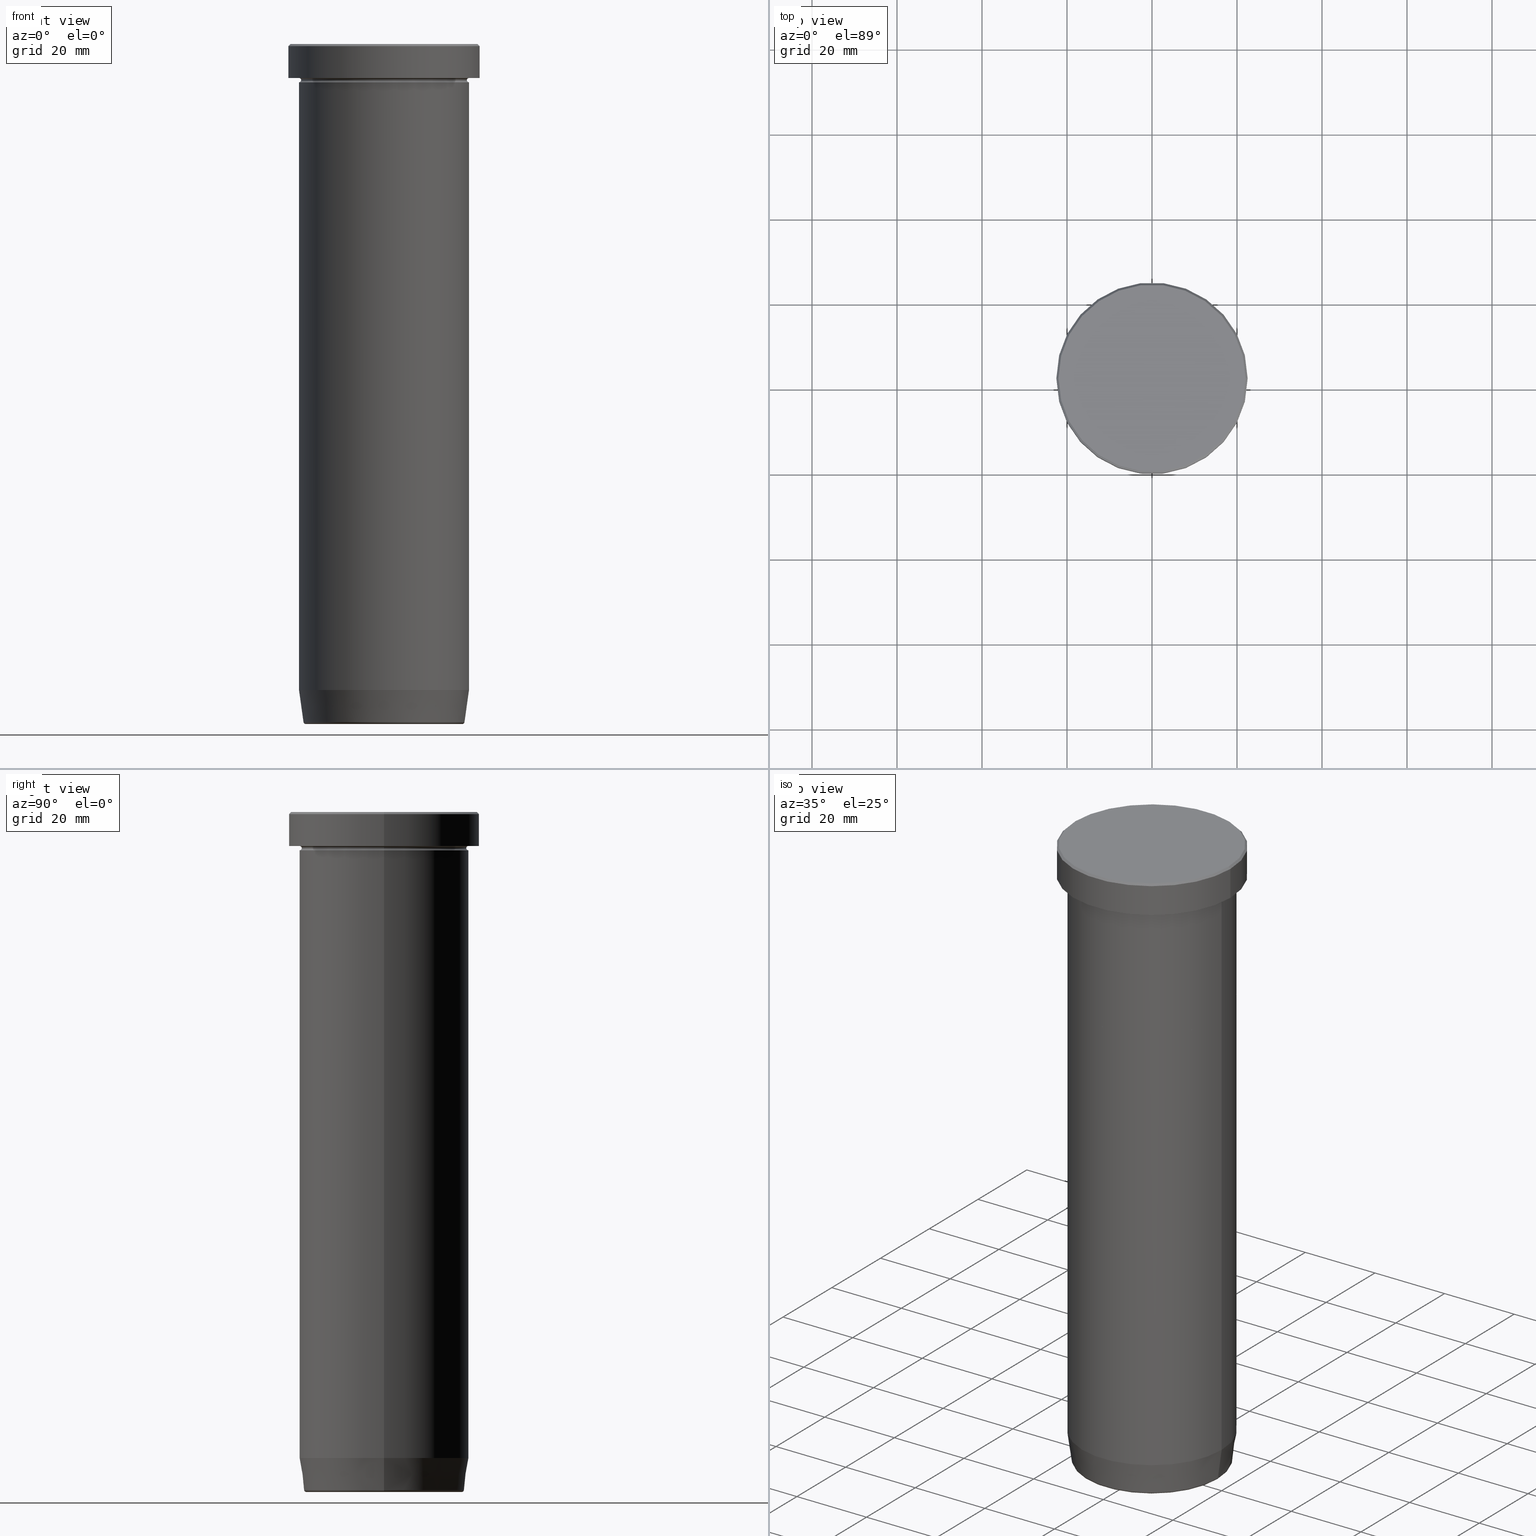
[diagram: canonical four-view strip — front | top / right | iso, engineering-drawing reading convention]
A machine part, canonical four-view strip (front | top / right | iso — engineering-drawing reading convention). The complete STEP part file that produces these views, byte-faithful:
ISO-10303-21;
HEADER;
FILE_DESCRIPTION (( 'STEP AP203' ),
    '1' );
FILE_NAME ('8f51.STEP',
    '2024-01-02T17:48:45',
    ( '' ),
    ( '' ),
    'SwSTEP 2.0',
    'SolidWorks 2019',
    '' );
FILE_SCHEMA (( 'CONFIG_CONTROL_DESIGN' ));
ENDSEC;

DATA;
#1 = CARTESIAN_POINT ( 'NONE',  ( 0.000000000000000000, 0.000000000000000000, -159.4999999999999716 ) ) ;
#2 = ADVANCED_FACE ( 'NONE', ( #351 ), #305, .T. ) ;
#3 = FACE_OUTER_BOUND ( 'NONE', #355, .T. ) ;
#4 = AXIS2_PLACEMENT_3D ( 'NONE', #227, #76, #274 ) ;
#5 = CARTESIAN_POINT ( 'NONE',  ( 20.00000000000000000, 0.000000000000000000, -8.499999999999996447 ) ) ;
#6 = EDGE_LOOP ( 'NONE', ( #569, #513, #464, #572 ) ) ;
#7 = APPROVAL_DATE_TIME ( #106, #290 ) ;
#8 = SHAPE_DEFINITION_REPRESENTATION ( #109, #471 ) ;
#9 = ORIENTED_EDGE ( 'NONE', *, *, #410, .F. ) ;
#10 = ORIENTED_EDGE ( 'NONE', *, *, #107, .F. ) ;
#11 = DATE_AND_TIME ( #407, #532 ) ;
#12 = CIRCLE ( 'NONE', #298, 22.50000000000000000 ) ;
#13 = FACE_OUTER_BOUND ( 'NONE', #399, .T. ) ;
#14 = CARTESIAN_POINT ( 'NONE',  ( -22.00000000000000000, 0.000000000000000000, 0.000000000000000000 ) ) ;
#15 = LINE ( 'NONE', #220, #165 ) ;
#16 = PRODUCT_RELATED_PRODUCT_CATEGORY ( 'detail', '', ( #311 ) ) ;
#17 = CARTESIAN_POINT ( 'NONE',  ( 0.000000000000000000, 0.000000000000000000, -8.999999999999998224 ) ) ;
#18 = CARTESIAN_POINT ( 'NONE',  ( 0.000000000000000000, 0.000000000000000000, -7.999999999999998224 ) ) ;
#19 = DIRECTION ( 'NONE',  ( -0.000000000000000000, -0.000000000000000000, 1.000000000000000000 ) ) ;
#20 = FACE_OUTER_BOUND ( 'NONE', #91, .T. ) ;
#21 = VECTOR ( 'NONE', #522, 1000.000000000000227 ) ;
#22 = AXIS2_PLACEMENT_3D ( 'NONE', #588, #129, #369 ) ;
#23 = DIRECTION ( 'NONE',  ( 1.000000000000000000, 0.000000000000000000, 0.000000000000000000 ) ) ;
#24 = ORIENTED_EDGE ( 'NONE', *, *, #118, .T. ) ;
#25 = ORIENTED_EDGE ( 'NONE', *, *, #202, .F. ) ;
#26 = EDGE_CURVE ( 'NONE', #66, #304, #420, .T. ) ;
#27 = CARTESIAN_POINT ( 'NONE',  ( 0.000000000000000000, 0.000000000000000000, -159.9999999999999716 ) ) ;
#28 = CARTESIAN_POINT ( 'NONE',  ( -20.00000000000000000, 0.000000000000000000, -8.499999999999998224 ) ) ;
#29 = AXIS2_PLACEMENT_3D ( 'NONE', #530, #403, #108 ) ;
#30 = DIRECTION ( 'NONE',  ( 1.000000000000000000, 0.000000000000000000, 0.000000000000000000 ) ) ;
#31 = VECTOR ( 'NONE', #155, 1000.000000000000000 ) ;
#32 = FACE_OUTER_BOUND ( 'NONE', #221, .T. ) ;
#33 = PERSON_AND_ORGANIZATION_ROLE ( 'creator' ) ;
#34 = ORIENTED_EDGE ( 'NONE', *, *, #107, .T. ) ;
#35 = DIRECTION ( 'NONE',  ( -1.000000000000000000, 0.000000000000000000, 0.000000000000000000 ) ) ;
#36 = ORIENTED_EDGE ( 'NONE', *, *, #141, .T. ) ;
#37 = LINE ( 'NONE', #233, #51 ) ;
#38 = DIRECTION ( 'NONE',  ( 1.000000000000000000, 0.000000000000000000, 0.000000000000000000 ) ) ;
#39 = AXIS2_PLACEMENT_3D ( 'NONE', #271, #101, #301 ) ;
#40 = APPROVAL_PERSON_ORGANIZATION ( #555, #290, #294 ) ;
#41 = PLANE ( 'NONE',  #156 ) ;
#42 = EDGE_CURVE ( 'NONE', #161, #275, #368, .T. ) ;
#43 = DIRECTION ( 'NONE',  ( -1.000000000000000000, 0.000000000000000000, -0.000000000000000000 ) ) ;
#44 = DIRECTION ( 'NONE',  ( 1.000000000000000000, 0.000000000000000000, 0.000000000000000000 ) ) ;
#45 = PLANE ( 'NONE',  #243 ) ;
#46 = CC_DESIGN_DATE_AND_TIME_ASSIGNMENT ( #100, #58, ( #278 ) ) ;
#47 = CIRCLE ( 'NONE', #112, 20.00000000000000000 ) ;
#48 = APPROVAL_DATE_TIME ( #436, #131 ) ;
#49 = VERTEX_POINT ( 'NONE', #268 ) ;
#50 = PERSON_AND_ORGANIZATION ( #540, #544 ) ;
#51 = VECTOR ( 'NONE', #422, 1000.000000000000000 ) ;
#52 = FACE_OUTER_BOUND ( 'NONE', #341, .T. ) ;
#53 = ORIENTED_EDGE ( 'NONE', *, *, #71, .T. ) ;
#54 = DIRECTION ( 'NONE',  ( -0.000000000000000000, -0.000000000000000000, 1.000000000000000000 ) ) ;
#55 = ORIENTED_EDGE ( 'NONE', *, *, #300, .F. ) ;
#56 = DIRECTION ( 'NONE',  ( -1.000000000000000000, 0.000000000000000000, 0.000000000000000000 ) ) ;
#57 = FACE_OUTER_BOUND ( 'NONE', #282, .T. ) ;
#58 = DATE_TIME_ROLE ( 'creation_date' ) ;
#59 = CLOSED_SHELL ( 'NONE', ( #223, #417, #553, #347, #281, #446, #179, #515 ) ) ;
#60 = AXIS2_PLACEMENT_3D ( 'NONE', #272, #312, #320 ) ;
#61 = DIRECTION ( 'NONE',  ( -1.000000000000000000, 1.224646799147349509E-16, 0.000000000000000000 ) ) ;
#62 = ORIENTED_EDGE ( 'NONE', *, *, #42, .T. ) ;
#63 = DIRECTION ( 'NONE',  ( -0.000000000000000000, -0.000000000000000000, 1.000000000000000000 ) ) ;
#64 = CC_DESIGN_PERSON_AND_ORGANIZATION_ASSIGNMENT ( #277, #33, ( #354 ) ) ;
#65 = DIRECTION ( 'NONE',  ( -0.000000000000000000, -0.000000000000000000, 1.000000000000000000 ) ) ;
#66 = VERTEX_POINT ( 'NONE', #194 ) ;
#67 = APPROVAL_ROLE ( '' ) ;
#68 = VERTEX_POINT ( 'NONE', #173 ) ;
#69 = VERTEX_POINT ( 'NONE', #571 ) ;
#70 =( NAMED_UNIT ( * ) SI_UNIT ( $, .STERADIAN. ) SOLID_ANGLE_UNIT ( ) );
#71 = EDGE_CURVE ( 'NONE', #382, #66, #86, .T. ) ;
#72 = EDGE_LOOP ( 'NONE', ( #501, #340, #492, #421 ) ) ;
#73 = CIRCLE ( 'NONE', #472, 20.00000000000000000 ) ;
#74 = CIRCLE ( 'NONE', #543, 0.5000000000000004441 ) ;
#75 =( GEOMETRIC_REPRESENTATION_CONTEXT ( 3 ) GLOBAL_UNCERTAINTY_ASSIGNED_CONTEXT ( ( #296 ) ) GLOBAL_UNIT_ASSIGNED_CONTEXT ( ( #586, #266, #70 ) ) REPRESENTATION_CONTEXT ( 'NONE', 'WORKASPACE' ) );
#76 = DIRECTION ( 'NONE',  ( 0.000000000000000000, 0.000000000000000000, -1.000000000000000000 ) ) ;
#77 = EDGE_CURVE ( 'NONE', #382, #259, #234, .T. ) ;
#78 = EDGE_LOOP ( 'NONE', ( #206, #548, #577, #10 ) ) ;
#79 = CARTESIAN_POINT ( 'NONE',  ( 22.50000000000000000, 0.000000000000000000, 0.000000000000000000 ) ) ;
#80 = AXIS2_PLACEMENT_3D ( 'NONE', #545, #402, #466 ) ;
#81 = PLANE ( 'NONE',  #280 ) ;
#82 = AXIS2_PLACEMENT_3D ( 'NONE', #429, #136, #562 ) ;
#83 = ORIENTED_EDGE ( 'NONE', *, *, #335, .T. ) ;
#84 = ADVANCED_FACE ( 'NONE', ( #130 ), #596, .F. ) ;
#85 = FACE_OUTER_BOUND ( 'NONE', #292, .T. ) ;
#86 = CIRCLE ( 'NONE', #279, 19.50000000000000000 ) ;
#87 = LOCAL_TIME ( 18, 48, 45.00000000000000000, #97 ) ;
#88 = ORIENTED_EDGE ( 'NONE', *, *, #451, .T. ) ;
#89 = DIRECTION ( 'NONE',  ( 1.000000000000000000, 0.000000000000000000, 0.000000000000000000 ) ) ;
#90 = ADVANCED_FACE ( 'NONE', ( #468 ), #209, .T. ) ;
#91 = EDGE_LOOP ( 'NONE', ( #418, #265, #55, #344 ) ) ;
#92 = ORIENTED_EDGE ( 'NONE', *, *, #426, .T. ) ;
#93 = DIRECTION ( 'NONE',  ( -0.000000000000000000, -0.000000000000000000, 1.000000000000000000 ) ) ;
#94 = VERTEX_POINT ( 'NONE', #115 ) ;
#95 = CYLINDRICAL_SURFACE ( 'NONE', #531, 20.00000000000000000 ) ;
#96 = MANIFOLD_SOLID_BREP ( 'Zkosen�1', #396 ) ;
#97 = COORDINATED_UNIVERSAL_TIME_OFFSET ( 1, 0, .AHEAD. ) ;
#98 = VERTEX_POINT ( 'NONE', #535 ) ;
#99 = DIRECTION ( 'NONE',  ( 1.000000000000000000, 0.000000000000000000, 0.000000000000000000 ) ) ;
#100 = DATE_AND_TIME ( #152, #556 ) ;
#101 = DIRECTION ( 'NONE',  ( 0.000000000000000000, 0.000000000000000000, -1.000000000000000000 ) ) ;
#102 = AXIS2_PLACEMENT_3D ( 'NONE', #124, #132, #30 ) ;
#103 = CARTESIAN_POINT ( 'NONE',  ( 22.00000000000000000, 2.724839128102860991E-15, 0.000000000000000000 ) ) ;
#104 = VERTEX_POINT ( 'NONE', #452 ) ;
#105 = FACE_OUTER_BOUND ( 'NONE', #78, .T. ) ;
#106 = DATE_AND_TIME ( #398, #592 ) ;
#107 = EDGE_CURVE ( 'NONE', #49, #443, #261, .T. ) ;
#108 = DIRECTION ( 'NONE',  ( 1.000000000000000000, 0.000000000000000000, 0.000000000000000000 ) ) ;
#109 = PRODUCT_DEFINITION_SHAPE ( 'NONE', 'NONE',  #278 ) ;
#110 = DIRECTION ( 'NONE',  ( 1.000000000000000000, 0.000000000000000000, 0.000000000000000000 ) ) ;
#111 = ADVANCED_FACE ( 'NONE', ( #57 ), #483, .F. ) ;
#112 = AXIS2_PLACEMENT_3D ( 'NONE', #450, #114, #400 ) ;
#113 = AXIS2_PLACEMENT_3D ( 'NONE', #334, #432, #476 ) ;
#114 = DIRECTION ( 'NONE',  ( -0.000000000000000000, -0.000000000000000000, 1.000000000000000000 ) ) ;
#115 = CARTESIAN_POINT ( 'NONE',  ( 20.00000000000000000, 0.000000000000000000, -151.9999999999999716 ) ) ;
#116 = VERTEX_POINT ( 'NONE', #103 ) ;
#117 = DIRECTION ( 'NONE',  ( -0.000000000000000000, -0.000000000000000000, 1.000000000000000000 ) ) ;
#118 = EDGE_CURVE ( 'NONE', #275, #161, #73, .T. ) ;
#119 = DIRECTION ( 'NONE',  ( 0.000000000000000000, 0.000000000000000000, -1.000000000000000000 ) ) ;
#120 = CYLINDRICAL_SURFACE ( 'NONE', #371, 20.00000000000000000 ) ;
#121 = CARTESIAN_POINT ( 'NONE',  ( 22.50000000000000000, 0.000000000000000000, -7.999999999999998224 ) ) ;
#122 = AXIS2_PLACEMENT_3D ( 'NONE', #247, #212, #251 ) ;
#123 = CIRCLE ( 'NONE', #171, 18.93616398784353194 ) ;
#124 = CARTESIAN_POINT ( 'NONE',  ( 0.000000000000000000, 0.000000000000000000, -159.9999999999999716 ) ) ;
#125 = DIRECTION ( 'NONE',  ( -0.1391731009600663260, 1.704378926181566459E-17, 0.9902680687415701399 ) ) ;
#126 = ORIENTED_EDGE ( 'NONE', *, *, #276, .F. ) ;
#127 = DIRECTION ( 'NONE',  ( -0.000000000000000000, -0.000000000000000000, 1.000000000000000000 ) ) ;
#128 = LINE ( 'NONE', #79, #31 ) ;
#129 = DIRECTION ( 'NONE',  ( 1.224646799147353207E-16, 1.000000000000000000, 0.000000000000000000 ) ) ;
#130 = FACE_OUTER_BOUND ( 'NONE', #358, .T. ) ;
#131 = APPROVAL ( #481, 'NEUR�EN�' ) ;
#132 = DIRECTION ( 'NONE',  ( -0.000000000000000000, -0.000000000000000000, 1.000000000000000000 ) ) ;
#133 = CIRCLE ( 'NONE', #82, 20.00000000000000000 ) ;
#134 = APPROVAL_DATE_TIME ( #11, #175 ) ;
#135 = EDGE_LOOP ( 'NONE', ( #25, #437, #34, #536 ) ) ;
#136 = DIRECTION ( 'NONE',  ( -0.000000000000000000, -0.000000000000000000, 1.000000000000000000 ) ) ;
#137 = DIRECTION ( 'NONE',  ( -0.000000000000000000, -0.000000000000000000, 1.000000000000000000 ) ) ;
#138 = DIRECTION ( 'NONE',  ( 0.000000000000000000, -0.000000000000000000, 1.000000000000000000 ) ) ;
#139 = EDGE_CURVE ( 'NONE', #68, #332, #337, .T. ) ;
#140 = ORIENTED_EDGE ( 'NONE', *, *, #435, .T. ) ;
#141 = EDGE_CURVE ( 'NONE', #259, #304, #509, .T. ) ;
#142 = CARTESIAN_POINT ( 'NONE',  ( 0.000000000000000000, 0.000000000000000000, -159.9999999999999716 ) ) ;
#143 = DIRECTION ( 'NONE',  ( 1.000000000000000000, 0.000000000000000000, 0.000000000000000000 ) ) ;
#144 = AXIS2_PLACEMENT_3D ( 'NONE', #559, #119, #497 ) ;
#145 = ORIENTED_EDGE ( 'NONE', *, *, #185, .T. ) ;
#146 = DIRECTION ( 'NONE',  ( -0.000000000000000000, -0.000000000000000000, 1.000000000000000000 ) ) ;
#147 = APPROVAL_ROLE ( '' ) ;
#148 = ORIENTED_EDGE ( 'NONE', *, *, #401, .T. ) ;
#149 = CARTESIAN_POINT ( 'NONE',  ( 0.000000000000000000, 0.000000000000000000, 0.000000000000000000 ) ) ;
#150 = DIRECTION ( 'NONE',  ( -0.000000000000000000, -0.000000000000000000, 1.000000000000000000 ) ) ;
#151 = DIRECTION ( 'NONE',  ( 0.000000000000000000, 0.000000000000000000, -1.000000000000000000 ) ) ;
#152 = CALENDAR_DATE ( 2024, 2, 1 ) ;
#153 = CARTESIAN_POINT ( 'NONE',  ( -20.00000000000000000, 2.449293598294706513E-15, 0.000000000000000000 ) ) ;
#154 = CARTESIAN_POINT ( 'NONE',  ( 0.000000000000000000, 0.000000000000000000, -159.5695865504800111 ) ) ;
#155 = DIRECTION ( 'NONE',  ( -0.000000000000000000, -0.000000000000000000, 1.000000000000000000 ) ) ;
#156 = AXIS2_PLACEMENT_3D ( 'NONE', #286, #520, #43 ) ;
#157 = ORIENTED_EDGE ( 'NONE', *, *, #507, .T. ) ;
#158 = CONICAL_SURFACE ( 'NONE', #4, 22.00000000000000000, 0.7853981633974552734 ) ;
#159 = ORIENTED_EDGE ( 'NONE', *, *, #352, .F. ) ;
#160 = ORIENTED_EDGE ( 'NONE', *, *, #250, .F. ) ;
#161 = VERTEX_POINT ( 'NONE', #207 ) ;
#162 = APPROVAL_STATUS ( 'not_yet_approved' ) ;
#163 = CC_DESIGN_PERSON_AND_ORGANIZATION_ASSIGNMENT ( #50, #309, ( #278 ) ) ;
#164 = DIRECTION ( 'NONE',  ( -0.000000000000000000, -0.000000000000000000, 1.000000000000000000 ) ) ;
#165 = VECTOR ( 'NONE', #125, 1000.000000000000227 ) ;
#166 = DIRECTION ( 'NONE',  ( 0.000000000000000000, 0.000000000000000000, -1.000000000000000000 ) ) ;
#167 = CARTESIAN_POINT ( 'NONE',  ( 22.50000000000000000, 0.000000000000000000, -0.4999999999999935052 ) ) ;
#168 = FACE_OUTER_BOUND ( 'NONE', #552, .T. ) ;
#169 = MECHANICAL_CONTEXT ( 'NONE', #480, 'mechanical' ) ;
#170 = TOROIDAL_SURFACE ( 'NONE', #519, 18.44102995347274998, 0.5000000000000000000 ) ;
#171 = AXIS2_PLACEMENT_3D ( 'NONE', #154, #534, #56 ) ;
#172 = CARTESIAN_POINT ( 'NONE',  ( 18.93616398784353194, 0.000000000000000000, -159.5695865504800111 ) ) ;
#173 = CARTESIAN_POINT ( 'NONE',  ( -20.00000000000000000, 2.449293598294706513E-15, -40.00000000000000000 ) ) ;
#174 = DIRECTION ( 'NONE',  ( 0.000000000000000000, 0.000000000000000000, 1.000000000000000000 ) ) ;
#175 = APPROVAL ( #162, 'NEUR�EN�' ) ;
#176 = DIRECTION ( 'NONE',  ( -0.000000000000000000, -0.000000000000000000, 1.000000000000000000 ) ) ;
#177 = PERSON_AND_ORGANIZATION_ROLE ( 'design_owner' ) ;
#178 = APPLICATION_PROTOCOL_DEFINITION ( 'international standard', 'config_control_design', 1994, #323 ) ;
#179 = ADVANCED_FACE ( 'NONE', ( #13 ), #360, .F. ) ;
#180 = CIRCLE ( 'NONE', #216, 18.93616398784353194 ) ;
#181 = AXIS2_PLACEMENT_3D ( 'NONE', #343, #174, #222 ) ;
#182 = ORIENTED_EDGE ( 'NONE', *, *, #465, .T. ) ;
#183 = FACE_OUTER_BOUND ( 'NONE', #455, .T. ) ;
#184 = SECURITY_CLASSIFICATION_LEVEL ( 'unclassified' ) ;
#185 = EDGE_CURVE ( 'NONE', #382, #275, #385, .T. ) ;
#186 = ORIENTED_EDGE ( 'NONE', *, *, #401, .F. ) ;
#187 = CARTESIAN_POINT ( 'NONE',  ( 0.000000000000000000, 22.50000000000000000, -7.999999999999998224 ) ) ;
#188 = AXIS2_PLACEMENT_3D ( 'NONE', #252, #201, #99 ) ;
#189 = AXIS2_PLACEMENT_3D ( 'NONE', #516, #508, #412 ) ;
#190 = CARTESIAN_POINT ( 'NONE',  ( -22.50000000000000000, 2.755455298081544778E-15, -7.999999999999998224 ) ) ;
#191 = SECURITY_CLASSIFICATION ( '', '', #184 ) ;
#192 = PERSON_AND_ORGANIZATION ( #540, #544 ) ;
#193 = DIRECTION ( 'NONE',  ( -0.000000000000000000, -0.000000000000000000, 1.000000000000000000 ) ) ;
#194 = CARTESIAN_POINT ( 'NONE',  ( 19.50000000000000000, 0.000000000000000000, -8.499999999999996447 ) ) ;
#195 = DIRECTION ( 'NONE',  ( 0.000000000000000000, -1.000000000000000000, 0.000000000000000000 ) ) ;
#196 = EDGE_CURVE ( 'NONE', #94, #438, #47, .T. ) ;
#197 = ORIENTED_EDGE ( 'NONE', *, *, #387, .F. ) ;
#198 = DIRECTION ( 'NONE',  ( 1.000000000000000000, 0.000000000000000000, 0.000000000000000000 ) ) ;
#199 = CARTESIAN_POINT ( 'NONE',  ( 0.000000000000000000, 0.000000000000000000, -7.999999999999998224 ) ) ;
#200 = ORIENTED_EDGE ( 'NONE', *, *, #141, .F. ) ;
#201 = DIRECTION ( 'NONE',  ( -0.000000000000000000, -0.000000000000000000, 1.000000000000000000 ) ) ;
#202 = EDGE_CURVE ( 'NONE', #116, #380, #496, .T. ) ;
#203 = AXIS2_PLACEMENT_3D ( 'NONE', #558, #137, #331 ) ;
#204 = VECTOR ( 'NONE', #127, 1000.000000000000000 ) ;
#205 = DESIGN_CONTEXT ( 'detailed design', #323, 'design' ) ;
#206 = ORIENTED_EDGE ( 'NONE', *, *, #465, .F. ) ;
#207 = CARTESIAN_POINT ( 'NONE',  ( 20.00000000000000000, 0.000000000000000000, -8.999999999999998224 ) ) ;
#208 = ADVANCED_FACE ( 'NONE', ( #105 ), #287, .T. ) ;
#209 = CYLINDRICAL_SURFACE ( 'NONE', #267, 20.00000000000000000 ) ;
#210 = DIRECTION ( 'NONE',  ( -0.000000000000000000, -0.000000000000000000, 1.000000000000000000 ) ) ;
#211 = ORIENTED_EDGE ( 'NONE', *, *, #77, .T. ) ;
#212 = DIRECTION ( 'NONE',  ( -0.000000000000000000, -0.000000000000000000, 1.000000000000000000 ) ) ;
#213 = CARTESIAN_POINT ( 'NONE',  ( 0.000000000000000000, 0.000000000000000000, -40.00000000000000000 ) ) ;
#214 = EDGE_CURVE ( 'NONE', #69, #104, #563, .T. ) ;
#215 = DIRECTION ( 'NONE',  ( 1.000000000000000000, 0.000000000000000000, 0.000000000000000000 ) ) ;
#216 = AXIS2_PLACEMENT_3D ( 'NONE', #345, #599, #35 ) ;
#217 = APPROVAL_PERSON_ORGANIZATION ( #488, #131, #147 ) ;
#218 = DIRECTION ( 'NONE',  ( 1.000000000000000000, 0.000000000000000000, 0.000000000000000000 ) ) ;
#219 = DIRECTION ( 'NONE',  ( 0.000000000000000000, 0.000000000000000000, -1.000000000000000000 ) ) ;
#220 = CARTESIAN_POINT ( 'NONE',  ( -18.87567332238086237, 2.311603291600480972E-15, -159.9999999999999716 ) ) ;
#221 = EDGE_LOOP ( 'NONE', ( #53, #490, #200, #389 ) ) ;
#222 = DIRECTION ( 'NONE',  ( 1.000000000000000000, 0.000000000000000000, 0.000000000000000000 ) ) ;
#223 = ADVANCED_FACE ( 'NONE', ( #20 ), #170, .T. ) ;
#224 = LINE ( 'NONE', #414, #270 ) ;
#225 = DIRECTION ( 'NONE',  ( 0.000000000000000000, 0.000000000000000000, -1.000000000000000000 ) ) ;
#226 = CONICAL_SURFACE ( 'NONE', #566, 18.87567332238086237, 0.1396263401595472520 ) ;
#227 = CARTESIAN_POINT ( 'NONE',  ( 0.000000000000000000, 0.000000000000000000, 0.000000000000000000 ) ) ;
#228 = CARTESIAN_POINT ( 'NONE',  ( 0.000000000000000000, 0.000000000000000000, -8.499999999999996447 ) ) ;
#229 = EDGE_CURVE ( 'NONE', #98, #506, #123, .T. ) ;
#230 = DIRECTION ( 'NONE',  ( 0.000000000000000000, 0.000000000000000000, -1.000000000000000000 ) ) ;
#231 = DIRECTION ( 'NONE',  ( -0.000000000000000000, -1.000000000000000000, -0.000000000000000000 ) ) ;
#232 = ORIENTED_EDGE ( 'NONE', *, *, #352, .T. ) ;
#233 = CARTESIAN_POINT ( 'NONE',  ( 20.00000000000000000, 0.000000000000000000, 0.000000000000000000 ) ) ;
#234 = CIRCLE ( 'NONE', #589, 0.5000000000000004441 ) ;
#235 = CIRCLE ( 'NONE', #510, 22.50000000000000000 ) ;
#236 = DIRECTION ( 'NONE',  ( 1.000000000000000000, 0.000000000000000000, 0.000000000000000000 ) ) ;
#237 = APPROVAL_PERSON_ORGANIZATION ( #449, #175, #67 ) ;
#238 = EDGE_CURVE ( 'NONE', #357, #328, #447, .T. ) ;
#239 = FACE_BOUND ( 'NONE', #461, .T. ) ;
#240 = ORIENTED_EDGE ( 'NONE', *, *, #118, .F. ) ;
#241 = DIRECTION ( 'NONE',  ( 1.000000000000000000, 0.000000000000000000, 0.000000000000000000 ) ) ;
#242 = CC_DESIGN_DATE_AND_TIME_ASSIGNMENT ( #477, #528, ( #191 ) ) ;
#243 = AXIS2_PLACEMENT_3D ( 'NONE', #187, #230, #342 ) ;
#244 = AXIS2_PLACEMENT_3D ( 'NONE', #546, #456, #218 ) ;
#245 = PERSON_AND_ORGANIZATION ( #540, #544 ) ;
#246 = APPLICATION_PROTOCOL_DEFINITION ( 'international standard', 'config_control_design', 1994, #480 ) ;
#247 = CARTESIAN_POINT ( 'NONE',  ( 0.000000000000000000, 0.000000000000000000, -8.499999999999996447 ) ) ;
#248 = COORDINATED_UNIVERSAL_TIME_OFFSET ( 1, 0, .AHEAD. ) ;
#249 = ORIENTED_EDGE ( 'NONE', *, *, #356, .F. ) ;
#250 = EDGE_CURVE ( 'NONE', #332, #68, #133, .T. ) ;
#251 = DIRECTION ( 'NONE',  ( 1.000000000000000000, 0.000000000000000000, 0.000000000000000000 ) ) ;
#252 = CARTESIAN_POINT ( 'NONE',  ( 0.000000000000000000, 0.000000000000000000, 0.000000000000000000 ) ) ;
#253 = COORDINATED_UNIVERSAL_TIME_OFFSET ( 1, 0, .AHEAD. ) ;
#254 = AXIS2_PLACEMENT_3D ( 'NONE', #419, #219, #595 ) ;
#255 = EDGE_LOOP ( 'NONE', ( #529, #148, #489, #425 ) ) ;
#256 = DIRECTION ( 'NONE',  ( 1.000000000000000000, 0.000000000000000000, 0.000000000000000000 ) ) ;
#257 = CARTESIAN_POINT ( 'NONE',  ( -18.44102995347274998, 2.288693046067141416E-15, -159.9999999999999716 ) ) ;
#258 = APPROVAL_STATUS ( 'not_yet_approved' ) ;
#259 = VERTEX_POINT ( 'NONE', #427 ) ;
#260 = CARTESIAN_POINT ( 'NONE',  ( 22.00000000000000000, 2.694222958124176809E-15, 0.000000000000000000 ) ) ;
#261 = LINE ( 'NONE', #14, #430 ) ;
#262 = ORIENTED_EDGE ( 'NONE', *, *, #196, .T. ) ;
#263 = CARTESIAN_POINT ( 'NONE',  ( 0.000000000000000000, 0.000000000000000000, -8.999999999999998224 ) ) ;
#264 = COORDINATED_UNIVERSAL_TIME_OFFSET ( 1, 0, .AHEAD. ) ;
#265 = ORIENTED_EDGE ( 'NONE', *, *, #568, .T. ) ;
#266 =( NAMED_UNIT ( * ) PLANE_ANGLE_UNIT ( ) SI_UNIT ( $, .RADIAN. ) );
#267 = AXIS2_PLACEMENT_3D ( 'NONE', #359, #54, #110 ) ;
#268 = CARTESIAN_POINT ( 'NONE',  ( -22.00000000000000000, 0.000000000000000000, 0.000000000000000000 ) ) ;
#269 = ORIENTED_EDGE ( 'NONE', *, *, #238, .T. ) ;
#270 = VECTOR ( 'NONE', #590, 1000.000000000000000 ) ;
#271 = CARTESIAN_POINT ( 'NONE',  ( 0.000000000000000000, 0.000000000000000000, -8.499999999999998224 ) ) ;
#272 = CARTESIAN_POINT ( 'NONE',  ( 0.000000000000000000, 0.000000000000000000, 0.000000000000000000 ) ) ;
#273 = EDGE_CURVE ( 'NONE', #413, #443, #390, .T. ) ;
#274 = DIRECTION ( 'NONE',  ( -1.000000000000000000, 0.000000000000000000, 0.000000000000000000 ) ) ;
#275 = VERTEX_POINT ( 'NONE', #570 ) ;
#276 = EDGE_CURVE ( 'NONE', #438, #94, #431, .T. ) ;
#277 = PERSON_AND_ORGANIZATION ( #540, #544 ) ;
#278 = PRODUCT_DEFINITION ( 'NEZN�M�', '', #354, #205 ) ;
#279 = AXIS2_PLACEMENT_3D ( 'NONE', #550, #150, #348 ) ;
#280 = AXIS2_PLACEMENT_3D ( 'NONE', #554, #138, #236 ) ;
#281 = ADVANCED_FACE ( 'NONE', ( #336 ), #333, .T. ) ;
#282 = EDGE_LOOP ( 'NONE', ( #394, #145, #24, #326 ) ) ;
#283 = DIRECTION ( 'NONE',  ( 0.000000000000000000, 0.000000000000000000, -1.000000000000000000 ) ) ;
#284 = DIRECTION ( 'NONE',  ( 1.000000000000000000, 0.000000000000000000, 0.000000000000000000 ) ) ;
#285 = CALENDAR_DATE ( 2024, 2, 1 ) ;
#286 = CARTESIAN_POINT ( 'NONE',  ( 0.000000000000000000, 20.00000000000000000, -40.00000000000000000 ) ) ;
#287 = CONICAL_SURFACE ( 'NONE', #445, 22.00000000000000000, 0.7853981633974552734 ) ;
#288 = CARTESIAN_POINT ( 'NONE',  ( 20.00000000000000000, 2.449293598294706513E-15, -7.999999999999998224 ) ) ;
#289 = DIRECTION ( 'NONE',  ( 1.000000000000000000, 0.000000000000000000, 0.000000000000000000 ) ) ;
#290 = APPROVAL ( #258, 'NEUR�EN�' ) ;
#291 = DIRECTION ( 'NONE',  ( 1.000000000000000000, 0.000000000000000000, 0.000000000000000000 ) ) ;
#292 = EDGE_LOOP ( 'NONE', ( #249, #439 ) ) ;
#293 = ORIENTED_EDGE ( 'NONE', *, *, #300, .T. ) ;
#294 = APPROVAL_ROLE ( '' ) ;
#295 = CARTESIAN_POINT ( 'NONE',  ( 0.000000000000000000, 0.000000000000000000, 0.000000000000000000 ) ) ;
#296 = UNCERTAINTY_MEASURE_WITH_UNIT (LENGTH_MEASURE( 1.000000000000000082E-05 ), #586, 'distance_accuracy_value', 'NONE');
#297 = DIRECTION ( 'NONE',  ( 0.000000000000000000, 0.000000000000000000, -1.000000000000000000 ) ) ;
#298 = AXIS2_PLACEMENT_3D ( 'NONE', #346, #297, #38 ) ;
#299 = CC_DESIGN_SECURITY_CLASSIFICATION ( #191, ( #354 ) ) ;
#300 = EDGE_CURVE ( 'NONE', #506, #98, #180, .T. ) ;
#301 = DIRECTION ( 'NONE',  ( -1.000000000000000000, 0.000000000000000000, 0.000000000000000000 ) ) ;
#302 = EDGE_CURVE ( 'NONE', #413, #524, #235, .T. ) ;
#303 = DIRECTION ( 'NONE',  ( -0.000000000000000000, -0.000000000000000000, 1.000000000000000000 ) ) ;
#304 = VERTEX_POINT ( 'NONE', #288 ) ;
#305 = CYLINDRICAL_SURFACE ( 'NONE', #188, 22.50000000000000000 ) ;
#306 = ADVANCED_FACE ( 'NONE', ( #85 ), #41, .T. ) ;
#307 = ORIENTED_EDGE ( 'NONE', *, *, #250, .T. ) ;
#308 = ORIENTED_EDGE ( 'NONE', *, *, #302, .F. ) ;
#309 = PERSON_AND_ORGANIZATION_ROLE ( 'creator' ) ;
#310 = CIRCLE ( 'NONE', #424, 0.5000000000000004441 ) ;
#311 = PRODUCT ( '8f51', '8f51', '', ( #169 ) ) ;
#312 = DIRECTION ( 'NONE',  ( -0.000000000000000000, -0.000000000000000000, 1.000000000000000000 ) ) ;
#313 = DIRECTION ( 'NONE',  ( 1.000000000000000000, 0.000000000000000000, 0.000000000000000000 ) ) ;
#314 = ORIENTED_EDGE ( 'NONE', *, *, #387, .T. ) ;
#315 = PERSON_AND_ORGANIZATION ( #540, #544 ) ;
#316 = ADVANCED_FACE ( 'NONE', ( #239, #3 ), #45, .T. ) ;
#317 = CIRCLE ( 'NONE', #467, 22.50000000000000000 ) ;
#318 = ORIENTED_EDGE ( 'NONE', *, *, #196, .F. ) ;
#319 = ORIENTED_EDGE ( 'NONE', *, *, #365, .T. ) ;
#320 = DIRECTION ( 'NONE',  ( 1.000000000000000000, 0.000000000000000000, 0.000000000000000000 ) ) ;
#321 = ORIENTED_EDGE ( 'NONE', *, *, #302, .T. ) ;
#322 = CARTESIAN_POINT ( 'NONE',  ( -20.00000000000000000, 2.449293598294706513E-15, 0.000000000000000000 ) ) ;
#323 = APPLICATION_CONTEXT ( 'configuration controlled 3d designs of mechanical parts and assemblies' ) ;
#324 = AXIS2_PLACEMENT_3D ( 'NONE', #493, #537, #61 ) ;
#325 = CIRCLE ( 'NONE', #521, 20.00000000000000000 ) ;
#326 = ORIENTED_EDGE ( 'NONE', *, *, #435, .F. ) ;
#327 = CIRCLE ( 'NONE', #244, 18.44102995347274998 ) ;
#328 = VERTEX_POINT ( 'NONE', #525 ) ;
#329 = DIRECTION ( 'NONE',  ( -0.000000000000000000, -0.000000000000000000, 1.000000000000000000 ) ) ;
#330 = ADVANCED_FACE ( 'NONE', ( #565 ), #95, .T. ) ;
#331 = DIRECTION ( 'NONE',  ( 1.000000000000000000, 0.000000000000000000, 0.000000000000000000 ) ) ;
#332 = VERTEX_POINT ( 'NONE', #374 ) ;
#333 = CYLINDRICAL_SURFACE ( 'NONE', #353, 20.00000000000000000 ) ;
#334 = CARTESIAN_POINT ( 'NONE',  ( 0.000000000000000000, 0.000000000000000000, -8.499999999999996447 ) ) ;
#335 = EDGE_CURVE ( 'NONE', #104, #161, #37, .T. ) ;
#336 = FACE_OUTER_BOUND ( 'NONE', #72, .T. ) ;
#337 = CIRCLE ( 'NONE', #459, 20.00000000000000000 ) ;
#338 = CYLINDRICAL_SURFACE ( 'NONE', #60, 22.50000000000000000 ) ;
#339 = AXIS2_PLACEMENT_3D ( 'NONE', #415, #593, #549 ) ;
#340 = ORIENTED_EDGE ( 'NONE', *, *, #276, .T. ) ;
#341 = EDGE_LOOP ( 'NONE', ( #197, #448, #576, #126 ) ) ;
#342 = DIRECTION ( 'NONE',  ( -1.000000000000000000, 0.000000000000000000, -0.000000000000000000 ) ) ;
#343 = CARTESIAN_POINT ( 'NONE',  ( 0.000000000000000000, 0.000000000000000000, 0.000000000000000000 ) ) ;
#344 = ORIENTED_EDGE ( 'NONE', *, *, #457, .F. ) ;
#345 = CARTESIAN_POINT ( 'NONE',  ( 0.000000000000000000, 0.000000000000000000, -159.5695865504800111 ) ) ;
#346 = CARTESIAN_POINT ( 'NONE',  ( 0.000000000000000000, 0.000000000000000000, -0.4999999999999935052 ) ) ;
#347 = ADVANCED_FACE ( 'NONE', ( #183 ), #379, .F. ) ;
#348 = DIRECTION ( 'NONE',  ( 1.000000000000000000, 0.000000000000000000, 0.000000000000000000 ) ) ;
#349 = CARTESIAN_POINT ( 'NONE',  ( -20.00000000000000000, 2.449293598294706513E-15, -151.9999999999999716 ) ) ;
#350 = ORIENTED_EDGE ( 'NONE', *, *, #426, .F. ) ;
#351 = FACE_OUTER_BOUND ( 'NONE', #363, .T. ) ;
#352 = EDGE_CURVE ( 'NONE', #524, #413, #317, .T. ) ;
#353 = AXIS2_PLACEMENT_3D ( 'NONE', #149, #193, #241 ) ;
#354 = PRODUCT_DEFINITION_FORMATION_WITH_SPECIFIED_SOURCE ( 'LIBOVOLN�', '', #311, .NOT_KNOWN. ) ;
#355 = EDGE_LOOP ( 'NONE', ( #159, #308 ) ) ;
#356 = EDGE_CURVE ( 'NONE', #104, #69, #325, .T. ) ;
#357 = VERTEX_POINT ( 'NONE', #257 ) ;
#358 = EDGE_LOOP ( 'NONE', ( #411, #350, #140, #62 ) ) ;
#359 = CARTESIAN_POINT ( 'NONE',  ( 0.000000000000000000, 0.000000000000000000, 0.000000000000000000 ) ) ;
#360 = PLANE ( 'NONE',  #29 ) ;
#361 = TOROIDAL_SURFACE ( 'NONE', #339, 20.00000000000000000, 0.5000000000000000000 ) ;
#362 = CC_DESIGN_PERSON_AND_ORGANIZATION_ASSIGNMENT ( #192, #561, ( #191 ) ) ;
#363 = EDGE_LOOP ( 'NONE', ( #232, #564, #597, #498 ) ) ;
#364 = CARTESIAN_POINT ( 'NONE',  ( 0.000000000000000000, 0.000000000000000000, -40.00000000000000000 ) ) ;
#365 = EDGE_CURVE ( 'NONE', #49, #116, #397, .T. ) ;
#366 = CARTESIAN_POINT ( 'NONE',  ( -19.50000000000000000, 2.418677428316022726E-15, -8.499999999999996447 ) ) ;
#367 = ADVANCED_FACE ( 'NONE', ( #404 ), #376, .F. ) ;
#368 = CIRCLE ( 'NONE', #423, 20.00000000000000000 ) ;
#369 = DIRECTION ( 'NONE',  ( -1.000000000000000000, 1.224646799147349509E-16, 0.000000000000000000 ) ) ;
#370 = AXIS2_PLACEMENT_3D ( 'NONE', #1, #384, #291 ) ;
#371 = AXIS2_PLACEMENT_3D ( 'NONE', #462, #176, #499 ) ;
#372 = DIRECTION ( 'NONE',  ( -0.000000000000000000, -0.000000000000000000, 1.000000000000000000 ) ) ;
#373 = FACE_OUTER_BOUND ( 'NONE', #453, .T. ) ;
#374 = CARTESIAN_POINT ( 'NONE',  ( 20.00000000000000000, 0.000000000000000000, -40.00000000000000000 ) ) ;
#375 = AXIS2_PLACEMENT_3D ( 'NONE', #228, #372, #256 ) ;
#376 = TOROIDAL_SURFACE ( 'NONE', #39, 20.00000000000000000, 0.5000000000000000000 ) ;
#377 = LOCAL_TIME ( 18, 48, 45.00000000000000000, #248 ) ;
#378 = CARTESIAN_POINT ( 'NONE',  ( 18.44102995347274998, 0.000000000000000000, -159.4999999999999716 ) ) ;
#379 = PLANE ( 'NONE',  #144 ) ;
#380 = VERTEX_POINT ( 'NONE', #167 ) ;
#381 = FACE_OUTER_BOUND ( 'NONE', #6, .T. ) ;
#382 = VERTEX_POINT ( 'NONE', #366 ) ;
#383 = CARTESIAN_POINT ( 'NONE',  ( -22.50000000000000000, 2.755455298081544778E-15, 0.000000000000000000 ) ) ;
#384 = DIRECTION ( 'NONE',  ( -0.000000000000000000, -0.000000000000000000, 1.000000000000000000 ) ) ;
#385 = CIRCLE ( 'NONE', #324, 0.5000000000000004441 ) ;
#386 = TOROIDAL_SURFACE ( 'NONE', #370, 18.44102995347274998, 0.5000000000000000000 ) ;
#387 = EDGE_CURVE ( 'NONE', #98, #438, #15, .T. ) ;
#388 = DIRECTION ( 'NONE',  ( -0.000000000000000000, -0.000000000000000000, 1.000000000000000000 ) ) ;
#389 = ORIENTED_EDGE ( 'NONE', *, *, #77, .F. ) ;
#390 = LINE ( 'NONE', #383, #484 ) ;
#391 = EDGE_LOOP ( 'NONE', ( #293, #314, #318, #9 ) ) ;
#392 = LINE ( 'NONE', #153, #503 ) ;
#393 = DIRECTION ( 'NONE',  ( -1.000000000000000000, 0.000000000000000000, 0.000000000000000000 ) ) ;
#394 = ORIENTED_EDGE ( 'NONE', *, *, #71, .F. ) ;
#395 = CARTESIAN_POINT ( 'NONE',  ( 0.000000000000000000, 0.000000000000000000, -159.4999999999999716 ) ) ;
#396 = CLOSED_SHELL ( 'NONE', ( #208, #547, #111, #330, #2, #306, #408, #523, #316, #90, #84, #367, #485 ) ) ;
#397 = CIRCLE ( 'NONE', #504, 22.00000000000000000 ) ;
#398 = CALENDAR_DATE ( 2024, 2, 1 ) ;
#399 = EDGE_LOOP ( 'NONE', ( #428, #269 ) ) ;
#400 = DIRECTION ( 'NONE',  ( 1.000000000000000000, 0.000000000000000000, 0.000000000000000000 ) ) ;
#401 = EDGE_CURVE ( 'NONE', #69, #275, #392, .T. ) ;
#402 = DIRECTION ( 'NONE',  ( -1.224646799147353207E-16, 1.000000000000000000, 0.000000000000000000 ) ) ;
#403 = DIRECTION ( 'NONE',  ( 0.000000000000000000, -0.000000000000000000, 1.000000000000000000 ) ) ;
#404 = FACE_OUTER_BOUND ( 'NONE', #494, .T. ) ;
#405 = VECTOR ( 'NONE', #454, 1000.000000000000000 ) ;
#406 = AXIS2_PLACEMENT_3D ( 'NONE', #517, #329, #143 ) ;
#407 = CALENDAR_DATE ( 2024, 2, 1 ) ;
#408 = ADVANCED_FACE ( 'NONE', ( #373 ), #81, .T. ) ;
#409 = ORIENTED_EDGE ( 'NONE', *, *, #26, .F. ) ;
#410 = EDGE_CURVE ( 'NONE', #506, #94, #560, .T. ) ;
#411 = ORIENTED_EDGE ( 'NONE', *, *, #185, .F. ) ;
#412 = DIRECTION ( 'NONE',  ( -1.000000000000000000, 0.000000000000000000, 0.000000000000000000 ) ) ;
#413 = VERTEX_POINT ( 'NONE', #190 ) ;
#414 = CARTESIAN_POINT ( 'NONE',  ( 20.00000000000000000, 0.000000000000000000, 0.000000000000000000 ) ) ;
#415 = CARTESIAN_POINT ( 'NONE',  ( 0.000000000000000000, 0.000000000000000000, -8.499999999999998224 ) ) ;
#416 = CIRCLE ( 'NONE', #254, 22.50000000000000000 ) ;
#417 = ADVANCED_FACE ( 'NONE', ( #575 ), #226, .T. ) ;
#418 = ORIENTED_EDGE ( 'NONE', *, *, #238, .F. ) ;
#419 = CARTESIAN_POINT ( 'NONE',  ( 0.000000000000000000, 0.000000000000000000, -0.4999999999999935052 ) ) ;
#420 = CIRCLE ( 'NONE', #80, 0.5000000000000004441 ) ;
#421 = ORIENTED_EDGE ( 'NONE', *, *, #139, .F. ) ;
#422 = DIRECTION ( 'NONE',  ( -0.000000000000000000, -0.000000000000000000, 1.000000000000000000 ) ) ;
#423 = AXIS2_PLACEMENT_3D ( 'NONE', #263, #19, #215 ) ;
#424 = AXIS2_PLACEMENT_3D ( 'NONE', #378, #511, #283 ) ;
#425 = ORIENTED_EDGE ( 'NONE', *, *, #335, .F. ) ;
#426 = EDGE_CURVE ( 'NONE', #66, #382, #578, .T. ) ;
#427 = CARTESIAN_POINT ( 'NONE',  ( -20.00000000000000000, 0.000000000000000000, -7.999999999999998224 ) ) ;
#428 = ORIENTED_EDGE ( 'NONE', *, *, #587, .T. ) ;
#429 = CARTESIAN_POINT ( 'NONE',  ( 0.000000000000000000, 0.000000000000000000, -40.00000000000000000 ) ) ;
#430 = VECTOR ( 'NONE', #580, 1000.000000000000000 ) ;
#431 = CIRCLE ( 'NONE', #406, 20.00000000000000000 ) ;
#432 = DIRECTION ( 'NONE',  ( -0.000000000000000000, -0.000000000000000000, 1.000000000000000000 ) ) ;
#433 = PERSON_AND_ORGANIZATION_ROLE ( 'design_supplier' ) ;
#434 = ORIENTED_EDGE ( 'NONE', *, *, #594, .T. ) ;
#435 = EDGE_CURVE ( 'NONE', #66, #161, #74, .T. ) ;
#436 = DATE_AND_TIME ( #473, #377 ) ;
#437 = ORIENTED_EDGE ( 'NONE', *, *, #365, .F. ) ;
#438 = VERTEX_POINT ( 'NONE', #349 ) ;
#439 = ORIENTED_EDGE ( 'NONE', *, *, #214, .F. ) ;
#440 = DIRECTION ( 'NONE',  ( -0.000000000000000000, -0.000000000000000000, 1.000000000000000000 ) ) ;
#441 = DIRECTION ( 'NONE',  ( 1.000000000000000000, 0.000000000000000000, 0.000000000000000000 ) ) ;
#442 = EDGE_LOOP ( 'NONE', ( #186, #482, #83, #240 ) ) ;
#443 = VERTEX_POINT ( 'NONE', #487 ) ;
#444 = DIRECTION ( 'NONE',  ( -1.000000000000000000, 0.000000000000000000, 0.000000000000000000 ) ) ;
#445 = AXIS2_PLACEMENT_3D ( 'NONE', #582, #166, #393 ) ;
#446 = ADVANCED_FACE ( 'NONE', ( #52 ), #460, .T. ) ;
#447 = CIRCLE ( 'NONE', #538, 18.44102995347274998 ) ;
#448 = ORIENTED_EDGE ( 'NONE', *, *, #229, .T. ) ;
#449 = PERSON_AND_ORGANIZATION ( #540, #544 ) ;
#450 = CARTESIAN_POINT ( 'NONE',  ( 0.000000000000000000, 0.000000000000000000, -151.9999999999999716 ) ) ;
#451 = EDGE_CURVE ( 'NONE', #380, #443, #416, .T. ) ;
#452 = CARTESIAN_POINT ( 'NONE',  ( 20.00000000000000000, 0.000000000000000000, -40.00000000000000000 ) ) ;
#453 = EDGE_LOOP ( 'NONE', ( #319, #182 ) ) ;
#454 = DIRECTION ( 'NONE',  ( 0.7071067811865524577, 8.659560562354994488E-17, -0.7071067811865426878 ) ) ;
#455 = EDGE_LOOP ( 'NONE', ( #307, #533 ) ) ;
#456 = DIRECTION ( 'NONE',  ( 0.000000000000000000, 0.000000000000000000, -1.000000000000000000 ) ) ;
#457 = EDGE_CURVE ( 'NONE', #328, #506, #310, .T. ) ;
#458 = DIRECTION ( 'NONE',  ( 1.000000000000000000, 0.000000000000000000, 0.000000000000000000 ) ) ;
#459 = AXIS2_PLACEMENT_3D ( 'NONE', #584, #526, #486 ) ;
#460 = CONICAL_SURFACE ( 'NONE', #102, 18.87567332238086237, 0.1396263401595472520 ) ;
#461 = EDGE_LOOP ( 'NONE', ( #36, #573 ) ) ;
#462 = CARTESIAN_POINT ( 'NONE',  ( 0.000000000000000000, 0.000000000000000000, 0.000000000000000000 ) ) ;
#463 = CIRCLE ( 'NONE', #22, 0.5000000000000004441 ) ;
#464 = ORIENTED_EDGE ( 'NONE', *, *, #457, .T. ) ;
#465 = EDGE_CURVE ( 'NONE', #116, #49, #474, .T. ) ;
#466 = DIRECTION ( 'NONE',  ( -1.000000000000000000, -1.224646799147349509E-16, 0.000000000000000000 ) ) ;
#467 = AXIS2_PLACEMENT_3D ( 'NONE', #18, #210, #198 ) ;
#468 = FACE_OUTER_BOUND ( 'NONE', #442, .T. ) ;
#469 = CC_DESIGN_PERSON_AND_ORGANIZATION_ASSIGNMENT ( #245, #433, ( #354 ) ) ;
#470 = EDGE_LOOP ( 'NONE', ( #551, #321, #157, #88 ) ) ;
#471 = ADVANCED_BREP_SHAPE_REPRESENTATION ( '8f51', ( #96, #527, #181 ), #75 ) ;
#472 = AXIS2_PLACEMENT_3D ( 'NONE', #17, #303, #441 ) ;
#473 = CALENDAR_DATE ( 2024, 2, 1 ) ;
#474 = CIRCLE ( 'NONE', #203, 22.00000000000000000 ) ;
#475 = FACE_OUTER_BOUND ( 'NONE', #470, .T. ) ;
#476 = DIRECTION ( 'NONE',  ( 1.000000000000000000, 0.000000000000000000, 0.000000000000000000 ) ) ;
#477 = DATE_AND_TIME ( #285, #87 ) ;
#478 = DIRECTION ( 'NONE',  ( -0.000000000000000000, -0.000000000000000000, 1.000000000000000000 ) ) ;
#479 = EDGE_CURVE ( 'NONE', #304, #259, #591, .T. ) ;
#480 = APPLICATION_CONTEXT ( 'configuration controlled 3d designs of mechanical parts and assemblies' ) ;
#481 = APPROVAL_STATUS ( 'not_yet_approved' ) ;
#482 = ORIENTED_EDGE ( 'NONE', *, *, #214, .T. ) ;
#483 = TOROIDAL_SURFACE ( 'NONE', #122, 20.00000000000000000, 0.5000000000000000000 ) ;
#484 = VECTOR ( 'NONE', #478, 1000.000000000000000 ) ;
#485 = ADVANCED_FACE ( 'NONE', ( #505 ), #158, .T. ) ;
#486 = DIRECTION ( 'NONE',  ( 1.000000000000000000, 0.000000000000000000, 0.000000000000000000 ) ) ;
#487 = CARTESIAN_POINT ( 'NONE',  ( -22.50000000000000000, 2.755455298081544778E-15, -0.4999999999999935052 ) ) ;
#488 = PERSON_AND_ORGANIZATION ( #540, #544 ) ;
#489 = ORIENTED_EDGE ( 'NONE', *, *, #42, .F. ) ;
#490 = ORIENTED_EDGE ( 'NONE', *, *, #26, .T. ) ;
#491 = EDGE_CURVE ( 'NONE', #94, #332, #224, .T. ) ;
#492 = ORIENTED_EDGE ( 'NONE', *, *, #491, .T. ) ;
#493 = CARTESIAN_POINT ( 'NONE',  ( -20.00000000000000000, 2.449293598294706513E-15, -8.499999999999996447 ) ) ;
#494 = EDGE_LOOP ( 'NONE', ( #409, #92, #211, #502 ) ) ;
#495 = CC_DESIGN_PERSON_AND_ORGANIZATION_ASSIGNMENT ( #315, #177, ( #311 ) ) ;
#496 = LINE ( 'NONE', #260, #405 ) ;
#497 = DIRECTION ( 'NONE',  ( -1.000000000000000000, 0.000000000000000000, -0.000000000000000000 ) ) ;
#498 = ORIENTED_EDGE ( 'NONE', *, *, #507, .F. ) ;
#499 = DIRECTION ( 'NONE',  ( 1.000000000000000000, 0.000000000000000000, 0.000000000000000000 ) ) ;
#500 = CARTESIAN_POINT ( 'NONE',  ( 0.000000000000000000, 0.000000000000000000, 0.000000000000000000 ) ) ;
#501 = ORIENTED_EDGE ( 'NONE', *, *, #594, .F. ) ;
#502 = ORIENTED_EDGE ( 'NONE', *, *, #479, .F. ) ;
#503 = VECTOR ( 'NONE', #164, 1000.000000000000000 ) ;
#504 = AXIS2_PLACEMENT_3D ( 'NONE', #500, #65, #23 ) ;
#505 = FACE_OUTER_BOUND ( 'NONE', #135, .T. ) ;
#506 = VERTEX_POINT ( 'NONE', #172 ) ;
#507 = EDGE_CURVE ( 'NONE', #524, #380, #128, .T. ) ;
#508 = DIRECTION ( 'NONE',  ( -0.000000000000000000, -0.000000000000000000, 1.000000000000000000 ) ) ;
#509 = CIRCLE ( 'NONE', #583, 20.00000000000000000 ) ;
#510 = AXIS2_PLACEMENT_3D ( 'NONE', #514, #146, #284 ) ;
#511 = DIRECTION ( 'NONE',  ( 0.000000000000000000, -1.000000000000000000, 0.000000000000000000 ) ) ;
#512 = EDGE_CURVE ( 'NONE', #443, #380, #12, .T. ) ;
#513 = ORIENTED_EDGE ( 'NONE', *, *, #587, .F. ) ;
#514 = CARTESIAN_POINT ( 'NONE',  ( 0.000000000000000000, 0.000000000000000000, -7.999999999999998224 ) ) ;
#515 = ADVANCED_FACE ( 'NONE', ( #381 ), #386, .T. ) ;
#516 = CARTESIAN_POINT ( 'NONE',  ( 0.000000000000000000, 0.000000000000000000, -7.999999999999998224 ) ) ;
#517 = CARTESIAN_POINT ( 'NONE',  ( 0.000000000000000000, 0.000000000000000000, -151.9999999999999716 ) ) ;
#518 = CARTESIAN_POINT ( 'NONE',  ( 18.87567332238086237, 0.000000000000000000, -159.9999999999999716 ) ) ;
#519 = AXIS2_PLACEMENT_3D ( 'NONE', #395, #440, #579 ) ;
#520 = DIRECTION ( 'NONE',  ( 0.000000000000000000, 0.000000000000000000, -1.000000000000000000 ) ) ;
#521 = AXIS2_PLACEMENT_3D ( 'NONE', #213, #539, #313 ) ;
#522 = DIRECTION ( 'NONE',  ( 0.1391731009600663260, 0.000000000000000000, 0.9902680687415701399 ) ) ;
#523 = ADVANCED_FACE ( 'NONE', ( #475 ), #338, .T. ) ;
#524 = VERTEX_POINT ( 'NONE', #121 ) ;
#525 = CARTESIAN_POINT ( 'NONE',  ( 18.44102995347274998, 0.000000000000000000, -159.9999999999999716 ) ) ;
#526 = DIRECTION ( 'NONE',  ( -0.000000000000000000, -0.000000000000000000, 1.000000000000000000 ) ) ;
#527 = MANIFOLD_SOLID_BREP ( 'Zaoblit4', #59 ) ;
#528 = DATE_TIME_ROLE ( 'classification_date' ) ;
#529 = ORIENTED_EDGE ( 'NONE', *, *, #356, .T. ) ;
#530 = CARTESIAN_POINT ( 'NONE',  ( 0.000000000000000000, 9.797174393178822896E-15, -159.9999999999999716 ) ) ;
#531 = AXIS2_PLACEMENT_3D ( 'NONE', #295, #93, #289 ) ;
#532 = LOCAL_TIME ( 18, 48, 45.00000000000000000, #264 ) ;
#533 = ORIENTED_EDGE ( 'NONE', *, *, #139, .T. ) ;
#534 = DIRECTION ( 'NONE',  ( -0.000000000000000000, -0.000000000000000000, 1.000000000000000000 ) ) ;
#535 = CARTESIAN_POINT ( 'NONE',  ( -18.93616398784353194, 2.384152429939451232E-15, -159.5695865504800111 ) ) ;
#536 = ORIENTED_EDGE ( 'NONE', *, *, #451, .F. ) ;
#537 = DIRECTION ( 'NONE',  ( 1.224646799147353207E-16, 1.000000000000000000, 0.000000000000000000 ) ) ;
#538 = AXIS2_PLACEMENT_3D ( 'NONE', #27, #557, #89 ) ;
#539 = DIRECTION ( 'NONE',  ( -0.000000000000000000, -0.000000000000000000, 1.000000000000000000 ) ) ;
#540 = PERSON ( 'NEUR�EN�', 'NEUR�EN�', 'NEUR�EN�', ('NEUR�EN�'), ('NEUR�EN�'), ('NEUR�EN�') ) ;
#541 = LINE ( 'NONE', #322, #204 ) ;
#542 = AXIS2_PLACEMENT_3D ( 'NONE', #364, #117, #458 ) ;
#543 = AXIS2_PLACEMENT_3D ( 'NONE', #5, #195, #151 ) ;
#544 = ORGANIZATION ( 'NEUR�EN�', 'NEUR�EN�', '' ) ;
#545 = CARTESIAN_POINT ( 'NONE',  ( 20.00000000000000000, 2.449293598294706513E-15, -8.499999999999998224 ) ) ;
#546 = CARTESIAN_POINT ( 'NONE',  ( 0.000000000000000000, 0.000000000000000000, -159.9999999999999716 ) ) ;
#547 = ADVANCED_FACE ( 'NONE', ( #32 ), #361, .F. ) ;
#548 = ORIENTED_EDGE ( 'NONE', *, *, #202, .T. ) ;
#549 = DIRECTION ( 'NONE',  ( -1.000000000000000000, 0.000000000000000000, 0.000000000000000000 ) ) ;
#550 = CARTESIAN_POINT ( 'NONE',  ( 0.000000000000000000, 0.000000000000000000, -8.499999999999996447 ) ) ;
#551 = ORIENTED_EDGE ( 'NONE', *, *, #273, .F. ) ;
#552 = EDGE_LOOP ( 'NONE', ( #262, #434, #160, #581 ) ) ;
#553 = ADVANCED_FACE ( 'NONE', ( #168 ), #120, .T. ) ;
#554 = CARTESIAN_POINT ( 'NONE',  ( 0.000000000000000000, 0.000000000000000000, 0.000000000000000000 ) ) ;
#555 = PERSON_AND_ORGANIZATION ( #540, #544 ) ;
#556 = LOCAL_TIME ( 18, 48, 45.00000000000000000, #574 ) ;
#557 = DIRECTION ( 'NONE',  ( 0.000000000000000000, 0.000000000000000000, -1.000000000000000000 ) ) ;
#558 = CARTESIAN_POINT ( 'NONE',  ( 0.000000000000000000, 0.000000000000000000, 0.000000000000000000 ) ) ;
#559 = CARTESIAN_POINT ( 'NONE',  ( 0.000000000000000000, 0.000000000000000000, -40.00000000000000000 ) ) ;
#560 = LINE ( 'NONE', #518, #21 ) ;
#561 = PERSON_AND_ORGANIZATION_ROLE ( 'classification_officer' ) ;
#562 = DIRECTION ( 'NONE',  ( 1.000000000000000000, 0.000000000000000000, 0.000000000000000000 ) ) ;
#563 = CIRCLE ( 'NONE', #542, 20.00000000000000000 ) ;
#564 = ORIENTED_EDGE ( 'NONE', *, *, #273, .T. ) ;
#565 = FACE_OUTER_BOUND ( 'NONE', #255, .T. ) ;
#566 = AXIS2_PLACEMENT_3D ( 'NONE', #142, #388, #44 ) ;
#567 = CC_DESIGN_APPROVAL ( #290, ( #278 ) ) ;
#568 = EDGE_CURVE ( 'NONE', #357, #98, #463, .T. ) ;
#569 = ORIENTED_EDGE ( 'NONE', *, *, #568, .F. ) ;
#570 = CARTESIAN_POINT ( 'NONE',  ( -20.00000000000000000, 2.449293598294706513E-15, -8.999999999999998224 ) ) ;
#571 = CARTESIAN_POINT ( 'NONE',  ( -20.00000000000000000, 2.449293598294706513E-15, -40.00000000000000000 ) ) ;
#572 = ORIENTED_EDGE ( 'NONE', *, *, #229, .F. ) ;
#573 = ORIENTED_EDGE ( 'NONE', *, *, #479, .T. ) ;
#574 = COORDINATED_UNIVERSAL_TIME_OFFSET ( 1, 0, .AHEAD. ) ;
#575 = FACE_OUTER_BOUND ( 'NONE', #391, .T. ) ;
#576 = ORIENTED_EDGE ( 'NONE', *, *, #410, .T. ) ;
#577 = ORIENTED_EDGE ( 'NONE', *, *, #512, .F. ) ;
#578 = CIRCLE ( 'NONE', #113, 19.50000000000000000 ) ;
#579 = DIRECTION ( 'NONE',  ( 1.000000000000000000, 0.000000000000000000, 0.000000000000000000 ) ) ;
#580 = DIRECTION ( 'NONE',  ( -0.7071067811865524577, 0.000000000000000000, -0.7071067811865426878 ) ) ;
#581 = ORIENTED_EDGE ( 'NONE', *, *, #491, .F. ) ;
#582 = CARTESIAN_POINT ( 'NONE',  ( 0.000000000000000000, 0.000000000000000000, 0.000000000000000000 ) ) ;
#583 = AXIS2_PLACEMENT_3D ( 'NONE', #199, #63, #444 ) ;
#584 = CARTESIAN_POINT ( 'NONE',  ( 0.000000000000000000, 0.000000000000000000, -40.00000000000000000 ) ) ;
#585 = CC_DESIGN_APPROVAL ( #131, ( #191 ) ) ;
#586 =( LENGTH_UNIT ( ) NAMED_UNIT ( * ) SI_UNIT ( .MILLI., .METRE. ) );
#587 = EDGE_CURVE ( 'NONE', #328, #357, #327, .T. ) ;
#588 = CARTESIAN_POINT ( 'NONE',  ( -18.44102995347274998, 2.258374830550086486E-15, -159.4999999999999716 ) ) ;
#589 = AXIS2_PLACEMENT_3D ( 'NONE', #28, #231, #225 ) ;
#590 = DIRECTION ( 'NONE',  ( -0.000000000000000000, -0.000000000000000000, 1.000000000000000000 ) ) ;
#591 = CIRCLE ( 'NONE', #189, 20.00000000000000000 ) ;
#592 = LOCAL_TIME ( 18, 48, 45.00000000000000000, #253 ) ;
#593 = DIRECTION ( 'NONE',  ( 0.000000000000000000, 0.000000000000000000, -1.000000000000000000 ) ) ;
#594 = EDGE_CURVE ( 'NONE', #438, #68, #541, .T. ) ;
#595 = DIRECTION ( 'NONE',  ( 1.000000000000000000, 0.000000000000000000, 0.000000000000000000 ) ) ;
#596 = TOROIDAL_SURFACE ( 'NONE', #375, 20.00000000000000000, 0.5000000000000000000 ) ;
#597 = ORIENTED_EDGE ( 'NONE', *, *, #512, .T. ) ;
#598 = CC_DESIGN_APPROVAL ( #175, ( #354 ) ) ;
#599 = DIRECTION ( 'NONE',  ( -0.000000000000000000, -0.000000000000000000, 1.000000000000000000 ) ) ;
ENDSEC;
END-ISO-10303-21;
